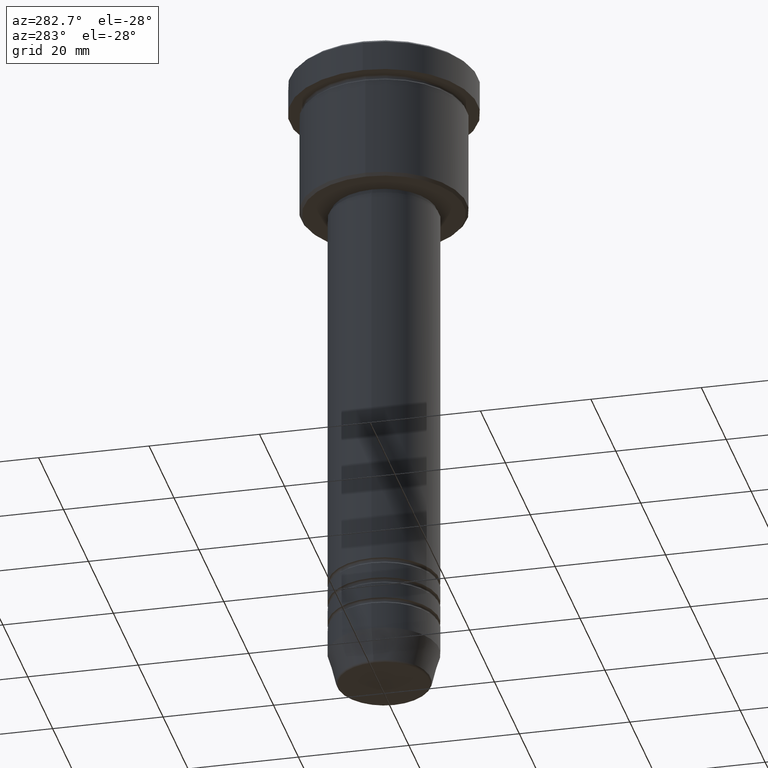
[diagram: clean part render]
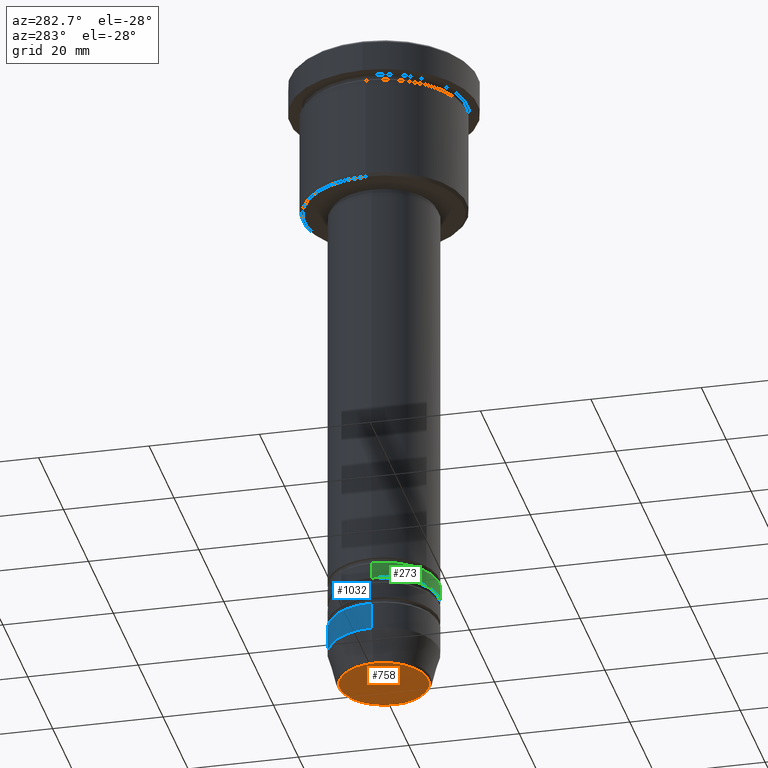
[diagram: same view with three faces highlighted in distinct colors, each labeled with its STEP entity id]
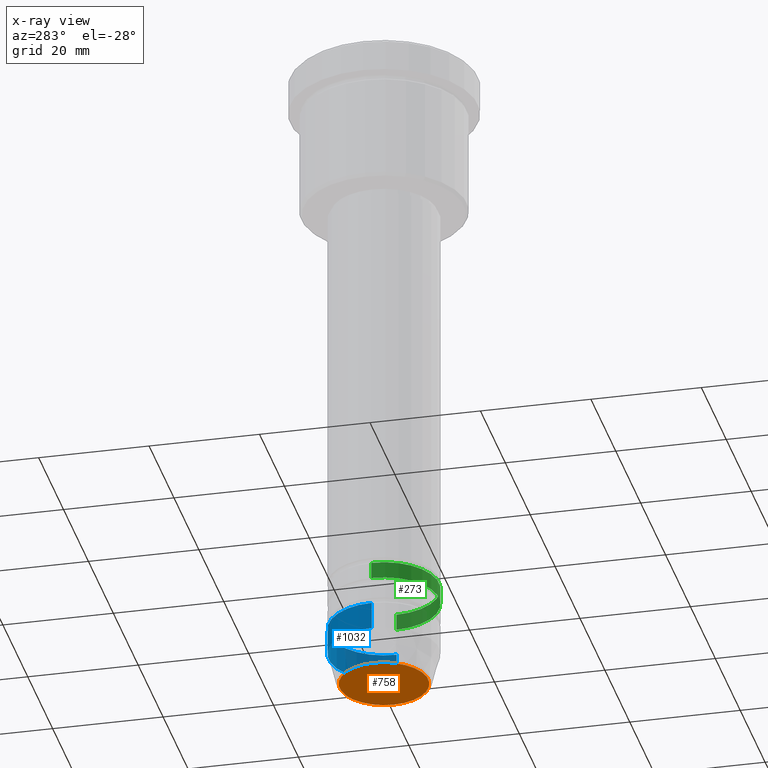
[diagram: x-ray of the same camera — body ghosted, the three highlighted faces saturated]
A machine part, auxiliary view with three faces highlighted in distinct colors.
The next image is the same camera in x-ray (body ghosted, the three faces saturated) — at least one of them is partly hidden behind the body in this view.
Their STEP definitions:

[orange] entity #758 — the highlighted planar face has unit normal (0, -0, 1).
#119 = AXIS2_PLACEMENT_3D ( 'NONE', #738, #460, #171 ) ;
#171 = DIRECTION ( 'NONE',  ( 1.000000000000000000, 0.000000000000000000, 0.000000000000000000 ) ) ;
#187 = PLANE ( 'NONE',  #511 ) ;
#217 = DIRECTION ( 'NONE',  ( 1.000000000000000000, 0.000000000000000000, 0.000000000000000000 ) ) ;
#300 = EDGE_LOOP ( 'NONE', ( #912, #327 ) ) ;
#327 = ORIENTED_EDGE ( 'NONE', *, *, #396, .T. ) ;
#344 = AXIS2_PLACEMENT_3D ( 'NONE', #1091, #922, #217 ) ;
#365 = CIRCLE ( 'NONE', #344, 8.008641351423779753 ) ;
#371 = EDGE_CURVE ( 'NONE', #839, #499, #1057, .T. ) ;
#396 = EDGE_CURVE ( 'NONE', #499, #839, #365, .T. ) ;
#460 = DIRECTION ( 'NONE',  ( 0.000000000000000000, 0.000000000000000000, -1.000000000000000000 ) ) ;
#499 = VERTEX_POINT ( 'NONE', #582 ) ;
#511 = AXIS2_PLACEMENT_3D ( 'NONE', #642, #1079, #904 ) ;
#582 = CARTESIAN_POINT ( 'NONE',  ( -8.008641351423779753, 1.010348648938493172E-15, -120.0000000000000000 ) ) ;
#642 = CARTESIAN_POINT ( 'NONE',  ( 0.000000000000000000, 0.000000000000000000, -120.0000000000000000 ) ) ;
#738 = CARTESIAN_POINT ( 'NONE',  ( 0.000000000000000000, 0.000000000000000000, -120.0000000000000000 ) ) ;
#758 = ADVANCED_FACE ( 'NONE', ( #810 ), #187, .F. ) ;
#810 = FACE_OUTER_BOUND ( 'NONE', #300, .T. ) ;
#839 = VERTEX_POINT ( 'NONE', #1052 ) ;
#904 = DIRECTION ( 'NONE',  ( 1.000000000000000000, 0.000000000000000000, 0.000000000000000000 ) ) ;
#912 = ORIENTED_EDGE ( 'NONE', *, *, #371, .T. ) ;
#922 = DIRECTION ( 'NONE',  ( 0.000000000000000000, 0.000000000000000000, -1.000000000000000000 ) ) ;
#1052 = CARTESIAN_POINT ( 'NONE',  ( 8.008641351423779753, 0.000000000000000000, -120.0000000000000000 ) ) ;
#1057 = CIRCLE ( 'NONE', #119, 8.008641351423779753 ) ;
#1079 = DIRECTION ( 'NONE',  ( 0.000000000000000000, -0.000000000000000000, 1.000000000000000000 ) ) ;
#1091 = CARTESIAN_POINT ( 'NONE',  ( 0.000000000000000000, 0.000000000000000000, -120.0000000000000000 ) ) ;

[blue] entity #1032 — the highlighted cylindrical surface (partial cylindrical patch) has radius 10 mm, axis along (-0, -0, 1).
#9 = ORIENTED_EDGE ( 'NONE', *, *, #175, .F. ) ;
#130 = VERTEX_POINT ( 'NONE', #977 ) ;
#160 = CARTESIAN_POINT ( 'NONE',  ( 0.000000000000000000, 0.000000000000000000, 0.000000000000000000 ) ) ;
#175 = EDGE_CURVE ( 'NONE', #130, #1100, #1142, .T. ) ;
#185 = CARTESIAN_POINT ( 'NONE',  ( -10.00000000000000178, 1.224646799147353454E-15, 0.000000000000000000 ) ) ;
#206 = VERTEX_POINT ( 'NONE', #448 ) ;
#237 = CIRCLE ( 'NONE', #420, 10.00000000000000178 ) ;
#238 = CARTESIAN_POINT ( 'NONE',  ( 10.00000000000000178, 0.000000000000000000, 0.000000000000000000 ) ) ;
#239 = ORIENTED_EDGE ( 'NONE', *, *, #812, .T. ) ;
#271 = EDGE_CURVE ( 'NONE', #1100, #588, #458, .T. ) ;
#279 = CARTESIAN_POINT ( 'NONE',  ( 0.000000000000000000, 0.000000000000000000, -108.9999999999999858 ) ) ;
#342 = DIRECTION ( 'NONE',  ( -0.000000000000000000, -0.000000000000000000, 1.000000000000000000 ) ) ;
#367 = DIRECTION ( 'NONE',  ( 1.000000000000000000, 0.000000000000000000, 0.000000000000000000 ) ) ;
#373 = DIRECTION ( 'NONE',  ( -0.000000000000000000, -0.000000000000000000, 1.000000000000000000 ) ) ;
#420 = AXIS2_PLACEMENT_3D ( 'NONE', #987, #373, #538 ) ;
#440 = DIRECTION ( 'NONE',  ( -0.000000000000000000, -0.000000000000000000, 1.000000000000000000 ) ) ;
#448 = CARTESIAN_POINT ( 'NONE',  ( -10.00000000000000178, 1.224646799147353454E-15, -113.9999999999999858 ) ) ;
#458 = CIRCLE ( 'NONE', #842, 10.00000000000000000 ) ;
#538 = DIRECTION ( 'NONE',  ( 1.000000000000000000, 0.000000000000000000, 0.000000000000000000 ) ) ;
#588 = VERTEX_POINT ( 'NONE', #1154 ) ;
#595 = ORIENTED_EDGE ( 'NONE', *, *, #271, .F. ) ;
#615 = CYLINDRICAL_SURFACE ( 'NONE', #928, 10.00000000000000178 ) ;
#620 = LINE ( 'NONE', #185, #1123 ) ;
#643 = DIRECTION ( 'NONE',  ( -0.000000000000000000, -0.000000000000000000, 1.000000000000000000 ) ) ;
#742 = DIRECTION ( 'NONE',  ( 1.000000000000000000, 0.000000000000000000, 0.000000000000000000 ) ) ;
#748 = ORIENTED_EDGE ( 'NONE', *, *, #1074, .T. ) ;
#779 = EDGE_LOOP ( 'NONE', ( #239, #748, #595, #9 ) ) ;
#812 = EDGE_CURVE ( 'NONE', #130, #206, #237, .T. ) ;
#842 = AXIS2_PLACEMENT_3D ( 'NONE', #279, #643, #742 ) ;
#928 = AXIS2_PLACEMENT_3D ( 'NONE', #160, #440, #367 ) ;
#971 = DIRECTION ( 'NONE',  ( -0.000000000000000000, -0.000000000000000000, 1.000000000000000000 ) ) ;
#977 = CARTESIAN_POINT ( 'NONE',  ( 10.00000000000000178, 0.000000000000000000, -113.9999999999999858 ) ) ;
#987 = CARTESIAN_POINT ( 'NONE',  ( 0.000000000000000000, 0.000000000000000000, -113.9999999999999858 ) ) ;
#1027 = CARTESIAN_POINT ( 'NONE',  ( 10.00000000000000000, 0.000000000000000000, -108.9999999999999858 ) ) ;
#1032 = ADVANCED_FACE ( 'NONE', ( #1171 ), #615, .T. ) ;
#1074 = EDGE_CURVE ( 'NONE', #206, #588, #620, .T. ) ;
#1100 = VERTEX_POINT ( 'NONE', #1027 ) ;
#1105 = VECTOR ( 'NONE', #342, 1000.000000000000000 ) ;
#1123 = VECTOR ( 'NONE', #971, 1000.000000000000000 ) ;
#1142 = LINE ( 'NONE', #238, #1105 ) ;
#1154 = CARTESIAN_POINT ( 'NONE',  ( -10.00000000000000000, 1.224646799147353256E-15, -108.9999999999999858 ) ) ;
#1171 = FACE_OUTER_BOUND ( 'NONE', #779, .T. ) ;

[green] entity #273 — the highlighted cylindrical surface (partial cylindrical patch) has radius 10 mm, axis along (-0, -0, 1).
#46 = CARTESIAN_POINT ( 'NONE',  ( 10.00000000000000178, 0.000000000000000000, -103.9999999999999858 ) ) ;
#122 = CIRCLE ( 'NONE', #178, 10.00000000000000178 ) ;
#166 = FACE_OUTER_BOUND ( 'NONE', #167, .T. ) ;
#167 = EDGE_LOOP ( 'NONE', ( #991, #362, #482, #1046 ) ) ;
#178 = AXIS2_PLACEMENT_3D ( 'NONE', #597, #504, #855 ) ;
#246 = VERTEX_POINT ( 'NONE', #1087 ) ;
#268 = CYLINDRICAL_SURFACE ( 'NONE', #364, 10.00000000000000178 ) ;
#273 = ADVANCED_FACE ( 'NONE', ( #166 ), #268, .T. ) ;
#289 = EDGE_CURVE ( 'NONE', #246, #919, #491, .T. ) ;
#346 = CARTESIAN_POINT ( 'NONE',  ( 10.00000000000000178, 0.000000000000000000, 0.000000000000000000 ) ) ;
#353 = DIRECTION ( 'NONE',  ( -0.000000000000000000, -0.000000000000000000, 1.000000000000000000 ) ) ;
#362 = ORIENTED_EDGE ( 'NONE', *, *, #540, .T. ) ;
#364 = AXIS2_PLACEMENT_3D ( 'NONE', #630, #649, #825 ) ;
#439 = DIRECTION ( 'NONE',  ( -0.000000000000000000, -0.000000000000000000, 1.000000000000000000 ) ) ;
#455 = CARTESIAN_POINT ( 'NONE',  ( -10.00000000000000178, 1.224646799147353454E-15, 0.000000000000000000 ) ) ;
#482 = ORIENTED_EDGE ( 'NONE', *, *, #592, .T. ) ;
#491 = CIRCLE ( 'NONE', #1153, 10.00000000000000000 ) ;
#504 = DIRECTION ( 'NONE',  ( -0.000000000000000000, -0.000000000000000000, 1.000000000000000000 ) ) ;
#535 = LINE ( 'NONE', #346, #1112 ) ;
#540 = EDGE_CURVE ( 'NONE', #793, #959, #122, .T. ) ;
#592 = EDGE_CURVE ( 'NONE', #959, #919, #535, .T. ) ;
#597 = CARTESIAN_POINT ( 'NONE',  ( 0.000000000000000000, 0.000000000000000000, -103.9999999999999858 ) ) ;
#630 = CARTESIAN_POINT ( 'NONE',  ( 0.000000000000000000, 0.000000000000000000, 0.000000000000000000 ) ) ;
#649 = DIRECTION ( 'NONE',  ( -0.000000000000000000, -0.000000000000000000, 1.000000000000000000 ) ) ;
#695 = LINE ( 'NONE', #455, #728 ) ;
#727 = DIRECTION ( 'NONE',  ( 1.000000000000000000, 0.000000000000000000, 0.000000000000000000 ) ) ;
#728 = VECTOR ( 'NONE', #353, 1000.000000000000000 ) ;
#793 = VERTEX_POINT ( 'NONE', #1096 ) ;
#825 = DIRECTION ( 'NONE',  ( 1.000000000000000000, 0.000000000000000000, 0.000000000000000000 ) ) ;
#849 = CARTESIAN_POINT ( 'NONE',  ( 10.00000000000000000, 0.000000000000000000, -100.9999999999999716 ) ) ;
#855 = DIRECTION ( 'NONE',  ( 1.000000000000000000, 0.000000000000000000, 0.000000000000000000 ) ) ;
#919 = VERTEX_POINT ( 'NONE', #849 ) ;
#959 = VERTEX_POINT ( 'NONE', #46 ) ;
#980 = EDGE_CURVE ( 'NONE', #793, #246, #695, .T. ) ;
#991 = ORIENTED_EDGE ( 'NONE', *, *, #980, .F. ) ;
#996 = CARTESIAN_POINT ( 'NONE',  ( 0.000000000000000000, 0.000000000000000000, -100.9999999999999716 ) ) ;
#1046 = ORIENTED_EDGE ( 'NONE', *, *, #289, .F. ) ;
#1087 = CARTESIAN_POINT ( 'NONE',  ( -10.00000000000000000, 1.224646799147353256E-15, -100.9999999999999716 ) ) ;
#1096 = CARTESIAN_POINT ( 'NONE',  ( -10.00000000000000178, 1.224646799147353454E-15, -103.9999999999999858 ) ) ;
#1112 = VECTOR ( 'NONE', #439, 1000.000000000000000 ) ;
#1153 = AXIS2_PLACEMENT_3D ( 'NONE', #996, #1179, #727 ) ;
#1179 = DIRECTION ( 'NONE',  ( -0.000000000000000000, -0.000000000000000000, 1.000000000000000000 ) ) ;